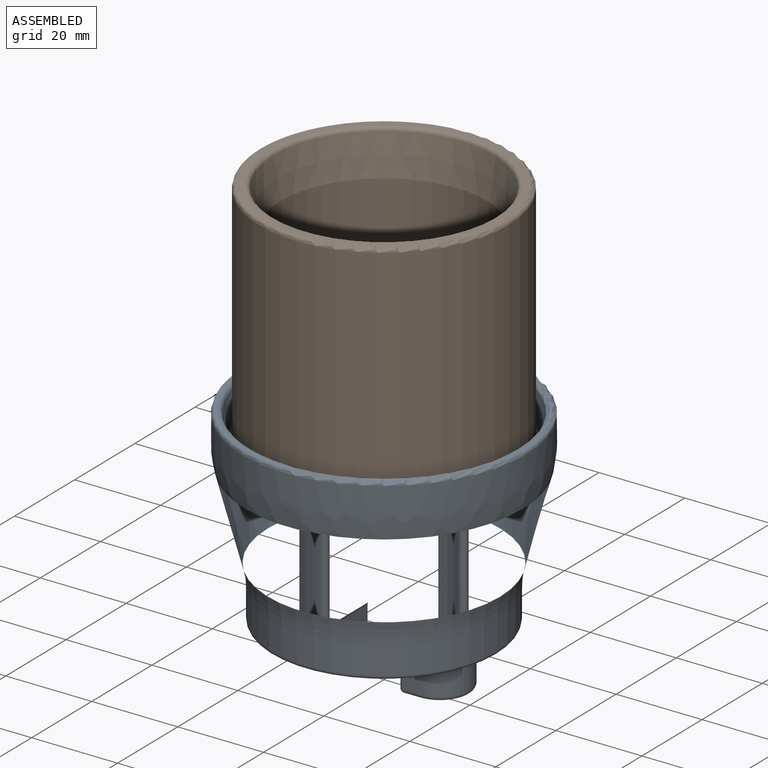
[diagram: assembled view]
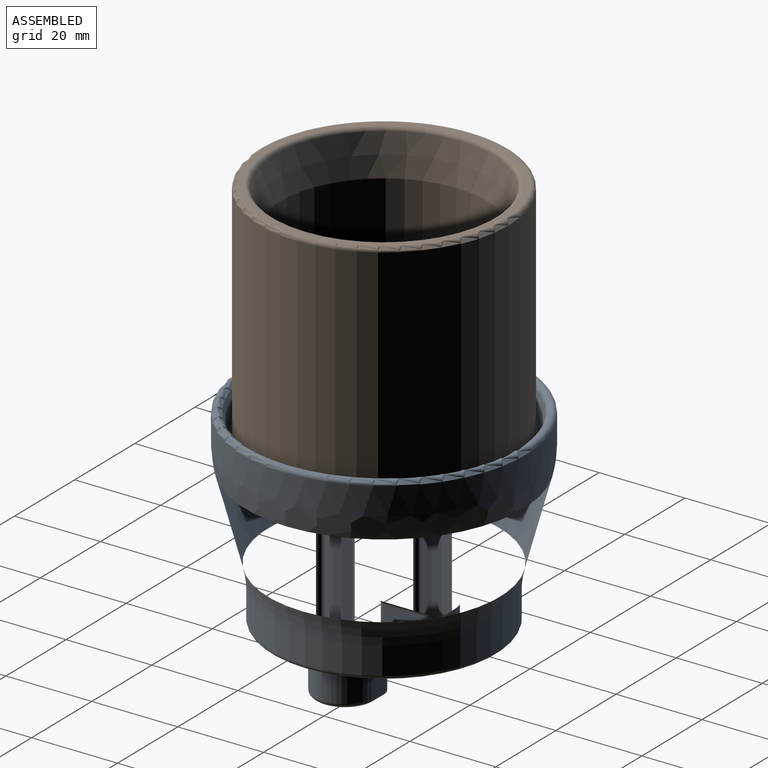
[diagram: assembled view, second angle]
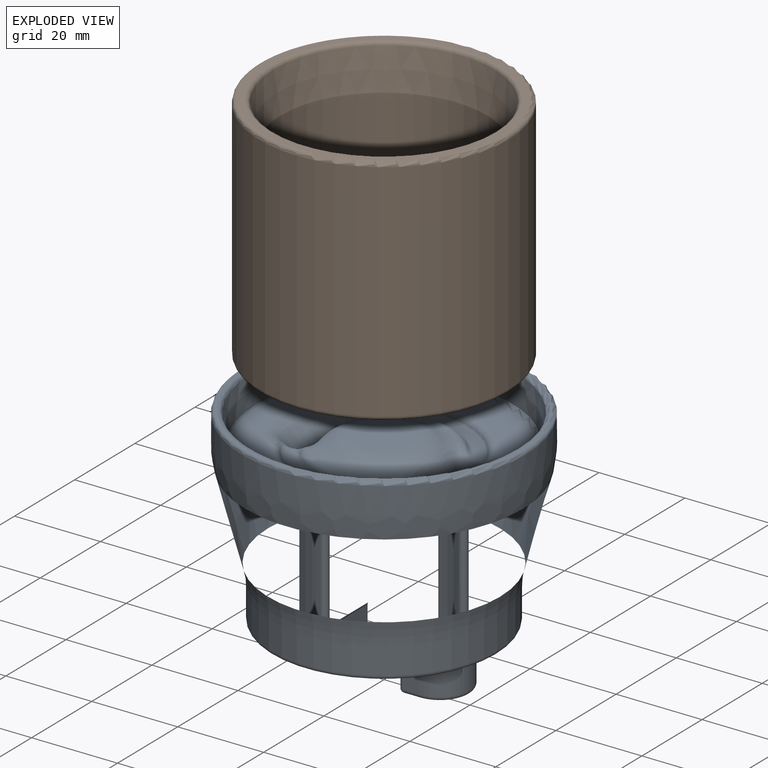
[diagram: exploded view]
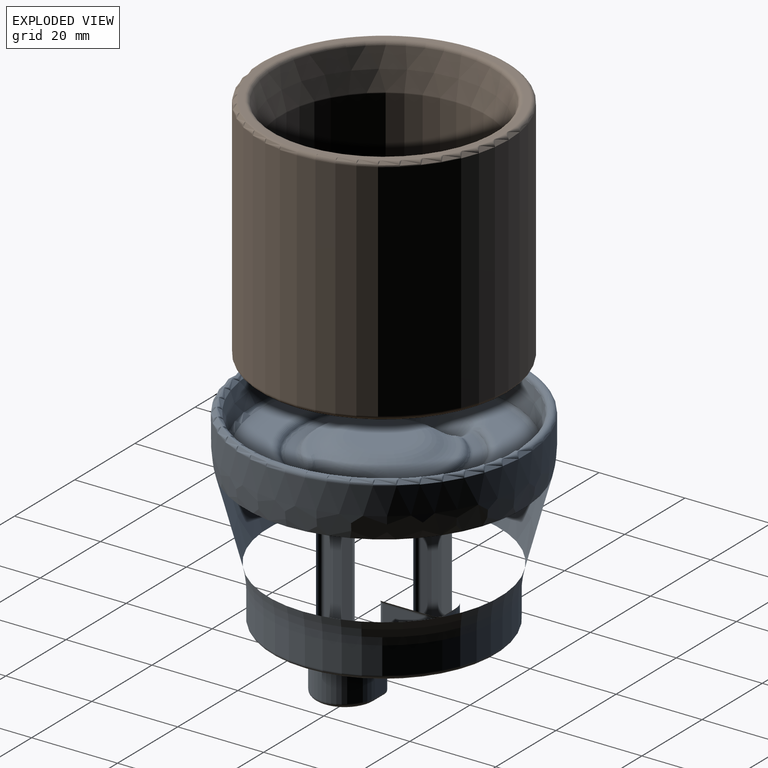
[diagram: exploded view, second angle]
ASSEMBLY  parts=2 mates=2
PART A: 137 faces, bbox 71.4x71.4x55 mm
  f0: cone r=6mm half-angle=45deg, axis (0,0,1), area 17.3mm2, adj f62,f63,f72,f77,f126,f128,f130
  f1: cone r=6mm half-angle=45deg, axis (0,0,1), area 17.3mm2, adj f62,f64,f70,f76,f114,f116,f118
  f2: cone r=6mm half-angle=45deg, axis (0,0,1), area 17.3mm2, adj f83,f84,f91,f98,f125,f127,f129
  f3: cone r=6mm half-angle=45deg, axis (0,0,1), area 17.3mm2, adj f83,f85,f93,f99,f113,f115,f117
  f4: plane 58.01x58.01mm, normal (0,0,1), area 1061.5mm2, adj f56,f70,f71,f72,f91,f92,f93,f121
  f5: plane 12x9.75mm, normal (0,0,-1), area 85.1mm2, adj f34,f36,f37,f39,f79,f80,f81,f82
  f6: plane 50.6x50.6mm, normal (0,0,-1), area 1629.5mm2, adj f26,f27,f28,f29,f30,f32,f40,f41
  f7: cylinder r=26.3mm len=52.6mm, axis (0,0,1), area 1052.2mm2, adj f22,f54
  f8: cylinder r=33mm len=66mm, axis (0,0,-1), area 1320.2mm2, adj f23,f57
  f9: plane 64x64mm, normal (0,0,1), area 26.2mm2, adj f55,f57
  f10: cone r=31mm half-angle=8deg, axis (0,0,1), area 1212.5mm2, adj f55,f56
  f11: cone r=33mm half-angle=15deg, axis (0,0,1), area 3840.7mm2, adj f22,f23
  f12: plane 13x13mm, normal (0,0,1), area 132.7mm2, adj f20
  f13: plane 12x8mm, normal (1,0,0), area 96mm2, adj f44,f45,f48,f49
  f14: plane 8x3.75mm, normal (0,1,0), area 30mm2, adj f25,f40,f45,f50
  f15: plane 8x3.75mm, normal (0,1,0), area 30mm2, adj f24,f29,f35,f39
  f16: plane 12x8mm, normal (-1,0,0), area 96mm2, adj f30,f31,f35,f36
  f17: plane 8x3.75mm, normal (0,-1,0), area 30mm2, adj f24,f26,f31,f34
  f18: plane 8x3.75mm, normal (0,-1,0), area 30mm2, adj f25,f43,f48,f53
  f19: plane 12x9.75mm, normal (0,0,-1), area 85.1mm2, adj f49,f50,f52,f53,f58,f59,f60,f61
  f20: torus R=6.5mm, axis (0,0,-1), area 247mm2, adj f12,f21
  f21: torus R=15.22mm, axis (0,0,1), area 187.3mm2, adj f20,f66,f67,f69,f87,f88,f90,f107
  f22: torus R=46.3mm, axis (0,0,1), area 872.8mm2, adj f7,f11
  f23: torus R=13mm, axis (0,0,-1), area 1078.2mm2, adj f8,f11
  f24: cylinder r=7mm len=14mm, axis (0,0,-1), area 175.9mm2, adj f15,f17,f27,f37
  f25: cylinder r=7mm len=14mm, axis (0,0,1), area 175.9mm2, adj f14,f18,f41,f52
  f26: cylinder r=1mm len=3.75mm, axis (1,0,0), area 5.9mm2, adj f6,f17,f27,f28
  f27: torus R=8mm, axis (0,0,-1), area 36.3mm2, adj f6,f24,f26,f29
  f28: torus R=2mm, axis (0,0,-1), area 3.4mm2, adj f6,f26,f30,f31
  f29: cylinder r=1mm len=3.75mm, axis (-1,0,0), area 5.9mm2, adj f6,f15,f27,f32
  f30: cylinder r=1mm len=12mm, axis (0,-1,0), area 18.8mm2, adj f6,f16,f28,f32
  f31: cylinder r=1mm len=8mm, axis (0,0,-1), area 12.6mm2, adj f16,f17,f28,f33
  f32: torus R=2mm, axis (0,0,-1), area 3.4mm2, adj f6,f29,f30,f35
  f33: sphere r=1mm, area 1.6mm2, adj f31,f34,f36
  f34: cylinder r=1mm len=3.75mm, axis (1,0,0), area 5.9mm2, adj f5,f17,f33,f37
  f35: cylinder r=1mm len=8mm, axis (0,0,1), area 12.6mm2, adj f15,f16,f32,f38
  f36: cylinder r=1mm len=12mm, axis (0,-1,0), area 18.8mm2, adj f5,f16,f33,f38
  f37: torus R=6mm, axis (0,0,1), area 32.8mm2, adj f5,f24,f34,f39
  f38: sphere r=1mm, area 2.1mm2, adj f35,f36,f39
  f39: cylinder r=1mm len=3.75mm, axis (-1,0,0), area 5.9mm2, adj f5,f15,f37,f38
  f40: cylinder r=1mm len=3.75mm, axis (-1,0,0), area 5.9mm2, adj f6,f14,f41,f42
  f41: torus R=8mm, axis (0,0,-1), area 36.3mm2, adj f6,f25,f40,f43
  f42: torus R=2mm, axis (0,0,-1), area 3.4mm2, adj f6,f40,f44,f45
  f43: cylinder r=1mm len=3.75mm, axis (1,0,0), area 5.9mm2, adj f6,f18,f41,f46
  f44: cylinder r=1mm len=12mm, axis (0,1,0), area 18.8mm2, adj f6,f13,f42,f46
  f45: cylinder r=1mm len=8mm, axis (0,0,-1), area 12.6mm2, adj f13,f14,f42,f47
  f46: torus R=2mm, axis (0,0,-1), area 3.4mm2, adj f6,f43,f44,f48
  f47: sphere r=1mm, area 1mm2, adj f45,f49,f50
  f48: cylinder r=1mm len=8mm, axis (0,0,1), area 12.6mm2, adj f13,f18,f46,f51
  f49: cylinder r=1mm len=12mm, axis (0,1,0), area 18.8mm2, adj f13,f19,f47,f51
  f50: cylinder r=1mm len=3.75mm, axis (-1,0,0), area 5.9mm2, adj f14,f19,f47,f52
  f51: sphere r=1mm, area 1.6mm2, adj f48,f49,f53
  f52: torus R=6mm, axis (0,0,1), area 32.8mm2, adj f19,f25,f50,f53
  f53: cylinder r=1mm len=3.75mm, axis (1,0,0), area 5.9mm2, adj f18,f19,f51,f52
  f54: torus R=25.3mm, axis (0,0,-1), area 256mm2, adj f6,f7
  f55: torus R=31.87mm, axis (0,0,1), area 281.2mm2, adj f9,f10
  f56: torus R=29.01mm, axis (0,0,1), area 266.2mm2, adj f4,f10
  f57: torus R=32mm, axis (0,0,1), area 322.1mm2, adj f8,f9
  f58: cylinder r=15.5mm len=41.14mm, axis (0,0,1), area 256.6mm2, adj f19,f60,f61,f73,f74
  f59: cylinder r=17.5mm len=39.93mm, axis (0,0,1), area 281.1mm2, adj f19,f60,f61,f78
  f60: cylinder r=1mm len=41.14mm, axis (0,0,1), area 126.2mm2, adj f19,f58,f59,f74,f76
  f61: cylinder r=1mm len=41.14mm, axis (0,0,1), area 126.2mm2, adj f19,f58,f59,f75,f77
  f62: cone r=17.5mm half-angle=45deg, axis (0,0,1), area 23.6mm2, adj f0,f1,f71,f78
  f63: bspline ~5.84x5.51mm, area 11.1mm2, adj f0,f65,f69,f75,f132
  f64: bspline ~5.84x5.51mm, area 11.1mm2, adj f1,f65,f66,f68,f74,f112
  f65: cone r=15.5mm half-angle=35.8deg, axis (0,0,-1), area 15.5mm2, adj f63,f64,f67,f73
  f66: bspline ~9.4x3.75mm, area 19.1mm2, adj f21,f64,f68,f94,f108
  f67: torus R=8.86mm, axis (0,0,-1), area 12.3mm2, adj f21,f65,f69,f94
  f68: bspline ~3.27x3.06mm, area 0mm2, adj f64,f66,f110
  f69: bspline ~9.38x3.7mm, area 19.6mm2, adj f21,f63,f67,f134
  f70: torus R=8.07mm, axis (0,0,1), area 22.9mm2, adj f1,f4,f71,f120
  f71: torus R=24.57mm, axis (0,0,1), area 35.9mm2, adj f4,f62,f70,f72
  f72: torus R=8.07mm, axis (0,0,1), area 22.9mm2, adj f0,f4,f71,f124
  f73: torus R=10.5mm, axis (0,0,1), area 19.1mm2, adj f58,f65,f74,f75
  f74: bspline ~4.15x2.62mm, area 6.1mm2, adj f58,f60,f64,f73,f76
  f75: bspline ~4.15x2.57mm, area 6mm2, adj f61,f63,f73,f77
  f76: torus R=6mm, axis (0,0,-1), area 11.6mm2, adj f1,f60,f74,f78
  f77: torus R=6mm, axis (0,0,-1), area 11.6mm2, adj f0,f61,f75,f78
  f78: torus R=22.5mm, axis (0,0,-1), area 28.4mm2, adj f59,f62,f76,f77
  f79: cylinder r=15.5mm len=41.14mm, axis (0,0,1), area 256.6mm2, adj f5,f81,f82,f95,f96
  f80: cylinder r=17.5mm len=39.93mm, axis (0,0,1), area 281.1mm2, adj f5,f81,f82,f100
  f81: cylinder r=1mm len=41.14mm, axis (0,0,1), area 126.2mm2, adj f5,f79,f80,f97,f99
  f82: cylinder r=1mm len=41.14mm, axis (0,0,1), area 126.2mm2, adj f5,f79,f80,f96,f98
  f83: cone r=22.5mm half-angle=45deg, axis (0,0,1), area 23.6mm2, adj f2,f3,f92,f100
  f84: bspline ~5.84x5.51mm, area 11.1mm2, adj f2,f86,f87,f89,f96,f131
  f85: bspline ~5.84x5.51mm, area 11.1mm2, adj f3,f86,f90,f97,f111
  f86: cone r=12.07mm half-angle=35.8deg, axis (0,0,-1), area 15.5mm2, adj f84,f85,f88,f95
  f87: bspline ~9.4x3.75mm, area 19.1mm2, adj f21,f84,f88,f89,f135
  f88: torus R=8.86mm, axis (0,0,-1), area 12.3mm2, adj f21,f86,f87,f90
  f89: bspline ~3.27x3.06mm, area 0mm2, adj f84,f87,f133
  f90: bspline ~9.38x3.7mm, area 19.6mm2, adj f21,f85,f88,f109
  f91: torus R=8.07mm, axis (0,0,1), area 22.9mm2, adj f2,f4,f92,f123
  f92: torus R=24.57mm, axis (0,0,1), area 35.9mm2, adj f4,f83,f91,f93
  f93: torus R=8.07mm, axis (0,0,1), area 22.9mm2, adj f3,f4,f92,f119
  f94: bspline ~2.12x1.95mm, area 0mm2, adj f66,f67
  f95: torus R=10.5mm, axis (0,0,1), area 19.1mm2, adj f79,f86,f96,f97
  f96: bspline ~4.15x2.62mm, area 6.1mm2, adj f79,f82,f84,f95,f98
  f97: bspline ~4.15x2.57mm, area 6mm2, adj f81,f85,f95,f99
  f98: torus R=6mm, axis (0,0,-1), area 11.6mm2, adj f2,f82,f96,f100
  f99: torus R=6mm, axis (0,0,-1), area 11.6mm2, adj f3,f81,f97,f100
  f100: torus R=22.5mm, axis (0,0,-1), area 28.4mm2, adj f80,f83,f98,f99
  f101: plane 33.92x10.56mm, normal (0,0,1), area 77.3mm2, adj f105,f106,f115,f116
  f102: plane 33.92x10.56mm, normal (0,0,1), area 77.3mm2, adj f103,f104,f127,f128
  f103: torus R=17mm, axis (0,0,1), area 35.1mm2, adj f102,f129,f130,f131,f132,f133,f134,f135
  f104: torus R=19mm, axis (0,0,1), area 46mm2, adj f102,f122,f123,f124,f125,f126
  f105: torus R=17mm, axis (0,0,1), area 35.1mm2, adj f101,f107,f108,f109,f110,f111,f112,f113
  f106: torus R=19mm, axis (0,0,1), area 46mm2, adj f101,f117,f118,f119,f120,f121
  f107: torus R=14.39mm, axis (0,0,-1), area 52.4mm2, adj f21,f105,f108,f109
  f108: bspline ~4.04x3.66mm, area 5.8mm2, adj f66,f105,f107,f110
  f109: bspline ~4.05x3.68mm, area 5.8mm2, adj f90,f105,f107,f111
  f110: bspline ~1.87x0.56mm, area 0mm2, adj f68,f105,f108,f112
  f111: bspline ~1.84x0.66mm, area 0.1mm2, adj f85,f105,f109,f113
  f112: bspline ~1.88x0.63mm, area 0.1mm2, adj f64,f105,f110,f114
  f113: bspline ~2.32x2.26mm, area 2.1mm2, adj f3,f105,f111,f115
  f114: bspline ~2.32x2.26mm, area 2.1mm2, adj f1,f105,f112,f116
  f115: torus R=5.33mm, axis (0,0,1), area 3mm2, adj f3,f101,f113,f117
  f116: torus R=5.33mm, axis (0,0,1), area 3mm2, adj f1,f101,f114,f118
  f117: bspline ~2.49x1.88mm, area 1.6mm2, adj f3,f106,f115,f119
  f118: bspline ~2.49x1.88mm, area 1.6mm2, adj f1,f106,f116,f120
  f119: bspline ~5.13x2.3mm, area 4.6mm2, adj f93,f106,f117,f121
  f120: bspline ~5.03x2.3mm, area 4.6mm2, adj f70,f106,f118,f121
  f121: torus R=21.6mm, axis (0,0,1), area 89.6mm2, adj f4,f106,f119,f120
  f122: torus R=21.6mm, axis (0,0,1), area 89.6mm2, adj f4,f104,f123,f124
  f123: bspline ~5.03x2.3mm, area 4.6mm2, adj f91,f104,f122,f125
  f124: bspline ~5.13x2.3mm, area 4.6mm2, adj f72,f104,f122,f126
  f125: bspline ~2.49x1.88mm, area 1.6mm2, adj f2,f104,f123,f127
  f126: bspline ~2.49x1.88mm, area 1.6mm2, adj f0,f104,f124,f128
  f127: torus R=5.33mm, axis (0,0,1), area 3mm2, adj f2,f102,f125,f129
  f128: torus R=5.33mm, axis (0,0,1), area 3mm2, adj f0,f102,f126,f130
  f129: bspline ~2.32x2.26mm, area 2.1mm2, adj f2,f103,f127,f131
  f130: bspline ~2.32x2.26mm, area 2.1mm2, adj f0,f103,f128,f132
  f131: bspline ~1.88x0.63mm, area 0.1mm2, adj f84,f103,f129,f133
  f132: bspline ~1.84x0.66mm, area 0.1mm2, adj f63,f103,f130,f134
  f133: bspline ~1.87x0.56mm, area 0mm2, adj f89,f103,f131,f135
  f134: bspline ~4.05x3.68mm, area 5.8mm2, adj f69,f103,f132,f136
  f135: bspline ~4.04x3.66mm, area 5.8mm2, adj f87,f103,f133,f136
  f136: torus R=14.39mm, axis (0,0,-1), area 52.4mm2, adj f21,f103,f134,f135
PART B: 17 faces, bbox 62.8x62.8x59 mm
  f0: cylinder r=29mm len=58mm, axis (0,0,-1), area 9547.5mm2, adj f13,f16
  f1: plane 56x56mm, normal (0,0,1), area 239.7mm2, adj f11,f16
  f2: cylinder r=18mm len=36mm, axis (0,0,1), area 113.1mm2, adj f14,f15
  f3: plane 34x34mm, normal (0,0,-1), area 907.9mm2, adj f15
  f4: cone r=29mm half-angle=80deg, axis (0,0,1), area 1380.5mm2, adj f13,f14
  f5: cylinder r=24mm len=48mm, axis (0,0,-1), area 6024.9mm2, adj f9,f12
  f6: plane 37.13x37.13mm, normal (0,0,1), area 551.6mm2, adj f7,f9
  f7: cylinder r=13mm len=26mm, axis (0,0,1), area 245mm2, adj f6,f8
  f8: plane 26x26mm, normal (0,0,1), area 530.9mm2, adj f7
  f9: cone r=28.13mm half-angle=80deg, axis (0,0,1), area 738.3mm2, adj f5,f6
  f10: cone r=24mm half-angle=10deg, axis (0,0,1), area 1438.8mm2, adj f11,f12
  f11: torus R=26.6mm, axis (0,0,1), area 228.2mm2, adj f1,f10
  f12: torus R=25mm, axis (0,0,-1), area 26.3mm2, adj f5,f10
  f13: torus R=28mm, axis (0,0,-1), area 251.8mm2, adj f0,f4
  f14: torus R=19mm, axis (0,0,1), area 181.2mm2, adj f2,f4
  f15: torus R=17mm, axis (0,0,-1), area 174.1mm2, adj f2,f3
  f16: torus R=28mm, axis (0,0,1), area 282.6mm2, adj f0,f1
PLACE A at identity fixed
PLACE B t=(0,0,1.19)mm
MATE fastened B.f0 <-> A.f79  axis (0,0,1) through (0,0,2)mm
MATE slider B.f0 <-> A.f10  axis (0,0,-1) through (0,0,29.99)mm
